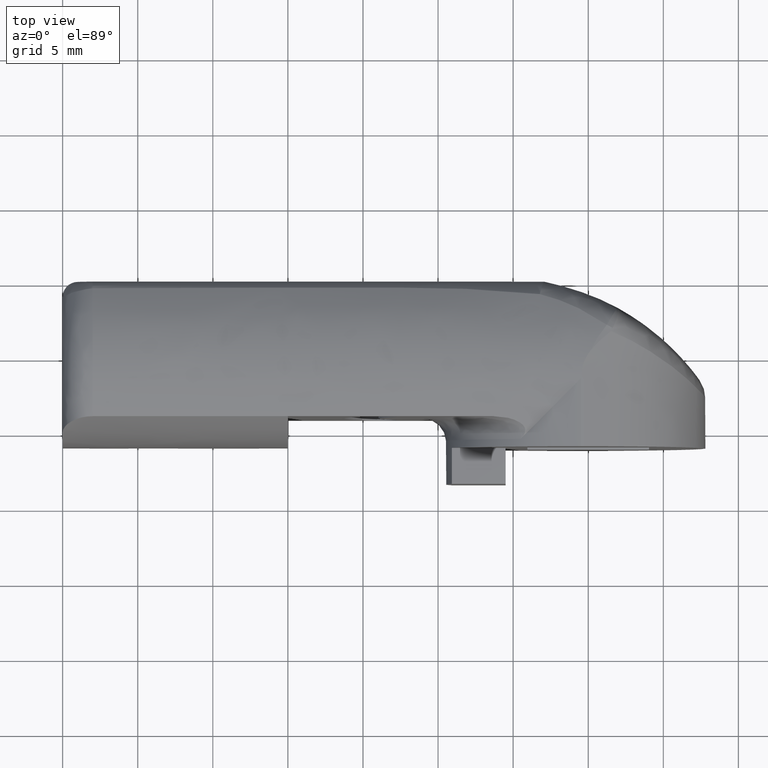
[diagram: clean part render]
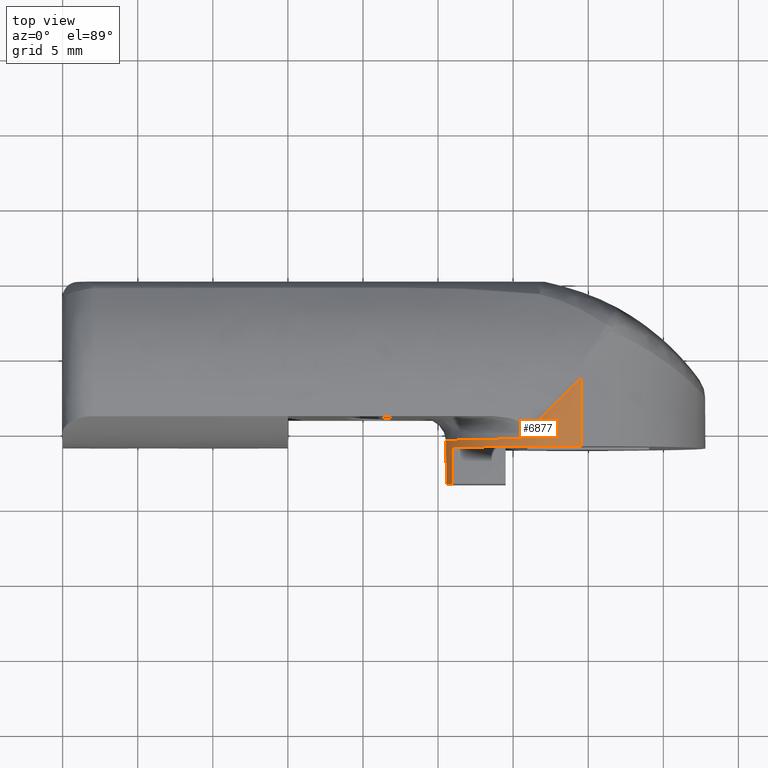
[diagram: same view with one face highlighted and labeled with its STEP entity id]
A machine part, top view. The second image highlights one B-rep face of the part: STEP entity #6877.
In plain terms, the highlighted face is a freeform B-spline surface patch.
Its self-contained STEP definition (entity closure, byte-faithful):
#1316=CARTESIAN_POINT('',(-0.475000044972790,-6.475000329957500,9.488118205372809));
#1317=VERTEX_POINT('',#1316);
#1339=CARTESIAN_POINT('',(-0.475000016957833,-11.000000997447140,9.488117645774491));
#1340=VERTEX_POINT('',#1339);
#1341=CARTESIAN_POINT('',(-0.475000016957833,-11.000000997447140,9.488117645774491));
#1342=CARTESIAN_POINT('',(-0.475000044972790,-6.475000329957500,9.488118205372809));
#1343=QUASI_UNIFORM_CURVE('',1,(#1341,#1342),.UNSPECIFIED.,.F.,.U.);
#1344=EDGE_CURVE('',#1340,#1317,#1343,.T.);
#2061=CARTESIAN_POINT('',(-0.474999032344946,-6.474999317329650,-9.488118256067581));
#2062=VERTEX_POINT('',#2061);
#2063=CARTESIAN_POINT('',(-0.475000016957832,-11.000000997447140,-9.488118393775620));
#2064=VERTEX_POINT('',#2063);
#2065=CARTESIAN_POINT('',(-0.474999032344946,-6.474999317329650,-9.488118256067581));
#2066=CARTESIAN_POINT('',(-0.475000016957832,-11.000000997447140,-9.488118393775620));
#2067=QUASI_UNIFORM_CURVE('',1,(#2065,#2066),.UNSPECIFIED.,.F.,.U.);
#2068=EDGE_CURVE('',#2062,#2064,#2067,.T.);
#4176=CARTESIAN_POINT('',(-4.500000142492310,-10.500000427477019,8.366600888053180));
#4177=VERTEX_POINT('',#4176);
#4236=CARTESIAN_POINT('',(-4.500000220503440,-10.500000427477000,-8.366601033094980));
#4237=VERTEX_POINT('',#4236);
#4277=CARTESIAN_POINT('',(-4.500000142492310,-10.500000427477019,8.366600888053180));
#4278=CARTESIAN_POINT('',(-9.500000345353534,-10.500000427477001,5.677336082157054));
#4279=CARTESIAN_POINT('',(-9.500000451225779,-10.500000427477000,-0.000000196842414));
#4280=CARTESIAN_POINT('',(-9.500000557098025,-10.500000427477001,-5.677336475841888));
#4281=CARTESIAN_POINT('',(-4.500000220503441,-10.500000427477000,-8.366601033094973));
#4289=(BOUNDED_CURVE()B_SPLINE_CURVE(2,(#4277,#4278,#4279,#4280,#4281),.UNSPECIFIED.,.F.,.U.)B_SPLINE_CURVE_WITH_KNOTS((3,2,3),(0.0,0.500000000000000,1.0),.UNSPECIFIED.)CURVE()GEOMETRIC_REPRESENTATION_ITEM()RATIONAL_B_SPLINE_CURVE((1.0,0.858395070703175,1.0,0.858395070703175,1.0))REPRESENTATION_ITEM(''));
#4290=EDGE_CURVE('',#4177,#4237,#4289,.T.);
#6116=CARTESIAN_POINT('',(-9.077995804610740,-13.400001097447200,-2.800000506993405));
#6117=VERTEX_POINT('',#6116);
#6132=CARTESIAN_POINT('',(-9.077995804610721,-13.400001097447200,2.799999758992315));
#6133=VERTEX_POINT('',#6132);
#6139=CARTESIAN_POINT('',(-9.077995804610723,-13.400001097447200,2.799999758992318));
#6140=CARTESIAN_POINT('',(-9.941622635191338,-13.400001097447198,-0.000000374000541));
#6141=CARTESIAN_POINT('',(-9.077995804610735,-13.400001097447200,-2.800000506993402));
#6149=(BOUNDED_CURVE()B_SPLINE_CURVE(2,(#6139,#6140,#6141),.UNSPECIFIED.,.F.,.U.)CURVE()GEOMETRIC_REPRESENTATION_ITEM()QUASI_UNIFORM_CURVE()RATIONAL_B_SPLINE_CURVE((1.0,0.955578460360957,1.0))REPRESENTATION_ITEM(''));
#6150=EDGE_CURVE('',#6133,#6117,#6149,.T.);
#6162=CARTESIAN_POINT('',(-9.077995804610731,-11.000000997447140,2.799999758992315));
#6163=VERTEX_POINT('',#6162);
#6169=CARTESIAN_POINT('',(-9.077995804610721,-13.400001097447200,2.799999758992315));
#6170=CARTESIAN_POINT('',(-9.077995804610731,-11.000000997447140,2.799999758992315));
#6171=QUASI_UNIFORM_CURVE('',1,(#6169,#6170),.UNSPECIFIED.,.F.,.U.);
#6172=EDGE_CURVE('',#6133,#6163,#6171,.T.);
#6210=CARTESIAN_POINT('',(-9.077995804610731,-11.000000997447140,-2.800000506993415));
#6211=VERTEX_POINT('',#6210);
#6219=CARTESIAN_POINT('',(-9.077995804610740,-13.400001097447200,-2.800000506993405));
#6220=CARTESIAN_POINT('',(-9.077995804610731,-11.000000997447140,-2.800000506993415));
#6221=QUASI_UNIFORM_CURVE('',1,(#6219,#6220),.UNSPECIFIED.,.F.,.U.);
#6222=EDGE_CURVE('',#6117,#6211,#6221,.T.);
#6784=CARTESIAN_POINT('',(-0.475000016957831,-11.000000997447140,9.488117645774491));
#6785=CARTESIAN_POINT('',(-7.117696509788324,-11.000000997447140,9.155566876468713));
#6786=CARTESIAN_POINT('',(-9.077995804610723,-11.000000997447140,2.799999758992318));
#6794=(BOUNDED_CURVE()B_SPLINE_CURVE(2,(#6784,#6785,#6786),.UNSPECIFIED.,.F.,.U.)CURVE()GEOMETRIC_REPRESENTATION_ITEM()QUASI_UNIFORM_CURVE()RATIONAL_B_SPLINE_CURVE((1.0,0.819190793699585,1.0))REPRESENTATION_ITEM(''));
#6795=EDGE_CURVE('',#1340,#6163,#6794,.T.);
#6800=CARTESIAN_POINT('',(-9.077995804610731,-11.000000997447140,-2.800000506993418));
#6801=CARTESIAN_POINT('',(-7.117696509788348,-11.000000997447140,-9.155567624469835));
#6802=CARTESIAN_POINT('',(-0.475000016957835,-11.000000997447140,-9.488118393775617));
#6810=(BOUNDED_CURVE()B_SPLINE_CURVE(2,(#6800,#6801,#6802),.UNSPECIFIED.,.F.,.U.)CURVE()GEOMETRIC_REPRESENTATION_ITEM()QUASI_UNIFORM_CURVE()RATIONAL_B_SPLINE_CURVE((1.0,0.819190793699584,1.0))REPRESENTATION_ITEM(''));
#6811=EDGE_CURVE('',#6211,#2064,#6810,.T.);
#6823=CARTESIAN_POINT('',(-0.105121701865024,-6.301874272826711,-9.499419198385926));
#6824=CARTESIAN_POINT('',(-0.105121701865024,-13.577454268062720,-9.499419198385926));
#6825=CARTESIAN_POINT('',(-9.687802420954114,-6.301874272826712,-9.393376110462077));
#6826=CARTESIAN_POINT('',(-9.687802420954114,-13.577454268062716,-9.393376110462077));
#6827=CARTESIAN_POINT('',(-9.498139767361401,-6.301874272826711,0.188014340737082));
#6828=CARTESIAN_POINT('',(-9.498139767361401,-13.577454268062720,0.188014340737082));
#6829=CARTESIAN_POINT('',(-9.308477113768692,-6.301874272826712,9.769404791936239));
#6830=CARTESIAN_POINT('',(-9.308477113768692,-13.577454268062716,9.769404791936239));
#6831=CARTESIAN_POINT('',(0.270893409561812,-6.301874272826711,9.496137016220049));
#6832=CARTESIAN_POINT('',(0.270893409561812,-13.577454268062720,9.496137016220049));
#6840=(BOUNDED_SURFACE()B_SPLINE_SURFACE(1,2,((#6823,#6825,#6827,#6829,#6831),(#6824,#6826,#6828,#6830,#6832)),.UNSPECIFIED.,.F.,.F.,.U.)B_SPLINE_SURFACE_WITH_KNOTS((2,2),(3,2,3),(0.0,7.275579995236005),(0.0,15.837331196839649,31.674662393679299),.UNSPECIFIED.)GEOMETRIC_REPRESENTATION_ITEM()RATIONAL_B_SPLINE_SURFACE(((1.0,0.704014724455968,1.0,0.704014724455968,1.0),(1.0,0.704014724455968,1.0,0.704014724455968,1.0)))REPRESENTATION_ITEM('')SURFACE());
#6841=ORIENTED_EDGE('',*,*,#6795,.F.);
#6842=ORIENTED_EDGE('',*,*,#1344,.T.);
#6843=CARTESIAN_POINT('',(-0.475000044972790,-6.475000329957500,9.488118205372809));
#6844=CARTESIAN_POINT('',(-2.613912259124783,-8.613912544109491,9.381038656409785));
#6845=CARTESIAN_POINT('',(-4.500000142492309,-10.500000427477019,8.366600888053183));
#6853=(BOUNDED_CURVE()B_SPLINE_CURVE(2,(#6843,#6844,#6845),.UNSPECIFIED.,.F.,.U.)CURVE()GEOMETRIC_REPRESENTATION_ITEM()QUASI_UNIFORM_CURVE()RATIONAL_B_SPLINE_CURVE((1.0,0.975519713436387,1.0))REPRESENTATION_ITEM(''));
#6854=EDGE_CURVE('',#1317,#4177,#6853,.T.);
#6855=ORIENTED_EDGE('',*,*,#6854,.T.);
#6856=ORIENTED_EDGE('',*,*,#4290,.T.);
#6857=CARTESIAN_POINT('',(-4.500000220503440,-10.500000427477000,-8.366601033094980));
#6858=CARTESIAN_POINT('',(-2.613911629290469,-8.613911914275178,-9.381038916790416));
#6859=CARTESIAN_POINT('',(-0.474999032344946,-6.474999317329650,-9.488118256067581));
#6867=(BOUNDED_CURVE()B_SPLINE_CURVE(2,(#6857,#6858,#6859),.UNSPECIFIED.,.F.,.U.)CURVE()GEOMETRIC_REPRESENTATION_ITEM()QUASI_UNIFORM_CURVE()RATIONAL_B_SPLINE_CURVE((1.0,0.975519705245268,1.0))REPRESENTATION_ITEM(''));
#6868=EDGE_CURVE('',#4237,#2062,#6867,.T.);
#6869=ORIENTED_EDGE('',*,*,#6868,.T.);
#6870=ORIENTED_EDGE('',*,*,#2068,.T.);
#6871=ORIENTED_EDGE('',*,*,#6811,.F.);
#6872=ORIENTED_EDGE('',*,*,#6222,.F.);
#6873=ORIENTED_EDGE('',*,*,#6150,.F.);
#6874=ORIENTED_EDGE('',*,*,#6172,.T.);
#6875=EDGE_LOOP('',(#6841,#6842,#6855,#6856,#6869,#6870,#6871,#6872,#6873,#6874));
#6876=FACE_OUTER_BOUND('',#6875,.T.);
#6877=ADVANCED_FACE('',(#6876),#6840,.T.);